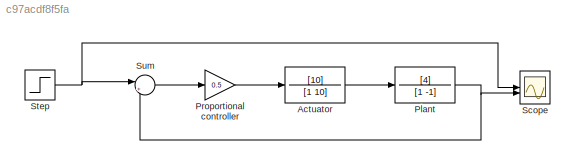
MODEL slx_c97acdf8f5fa
KIND model
CONFIG AbsTol = auto
CONFIG EnableMultiTasking = off
CONFIG FixedStep = auto
CONFIG MaxStep = auto
CONFIG MinStep = auto
CONFIG RelTol = 1e-3
CONFIG SampleTimeConstraint = Unconstrained
CONFIG SolverName = VariableStepAuto
CONFIG StartTime = 0.0
CONFIG StopTime = 10.0
BLOCK [TransferFcn] Actuator
  Denominator = [1 10]
  Numerator = [10]
BLOCK [TransferFcn] Plant
  Denominator = [1 -1]
  Numerator = [4]
BLOCK [Gain] Proportional controller
  Gain = 0.5
BLOCK [Scope] Scope
  Floating = off
  NumInputPorts = 2
  ScopeSpecificationString = Simulink.scopes.TimeScopeBlockCfg('CurrentConfiguration', extmgr.ConfigurationSet(extmgr.Configuration('Core','General UI',true),extmgr.Configuration('Core','Source UI',true),extmgr.Configuration('Sources','WiredSimulink',true),extmgr.Configuration('Visuals','Time Domain',true,'SerializedDisplays',{struct('MinYLimReal','-0.25','MaxYLimReal','2.24998','YLabelReal','','MinYLimMag','0.00000','MaxYLim...<+1326ch>
BLOCK [Step] Step
  SampleTime = 0
BLOCK [Sum] Sum
  Inputs = |+-
LINE Actuator:1 -> Plant:1
NET Plant:1 -> Scope:2, Sum:2
LINE Proportional controller:1 -> Actuator:1
NET Step:1 -> Scope:1, Sum:1
LINE Sum:1 -> Proportional controller:1
note: NET lines group one-source signal fan-out (src -> all destinations, sorted); 1:1 wires keep LINE
